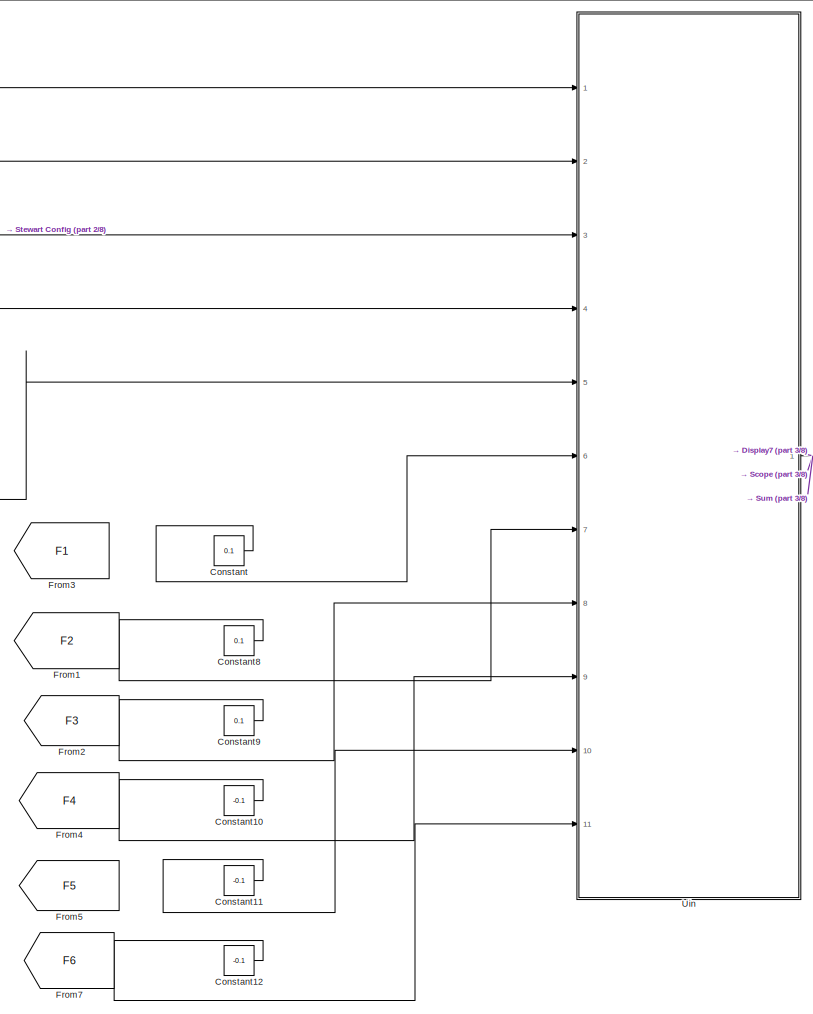
[diagram: root canvas - part 1/8, top center region]
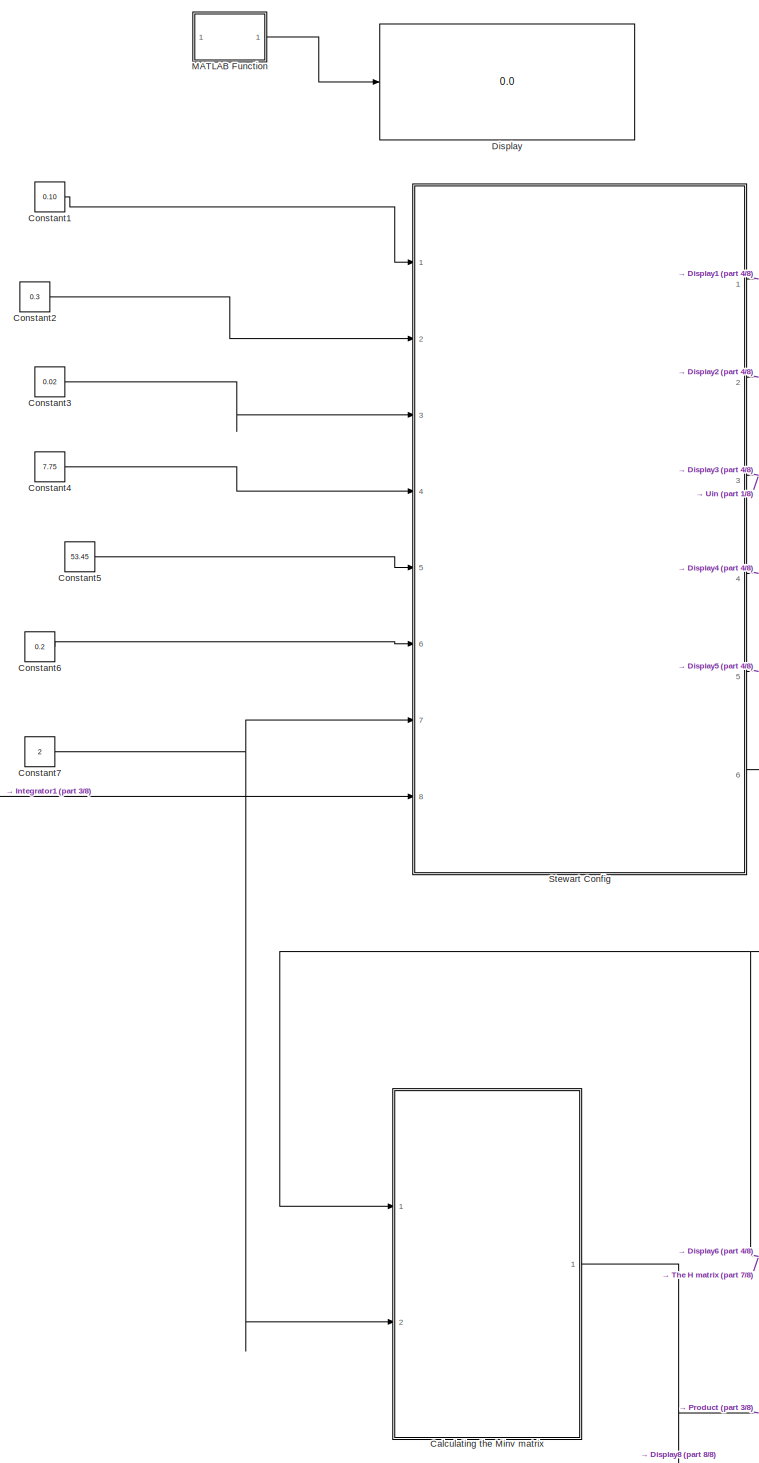
[diagram: root canvas - part 2/8, middle left region]
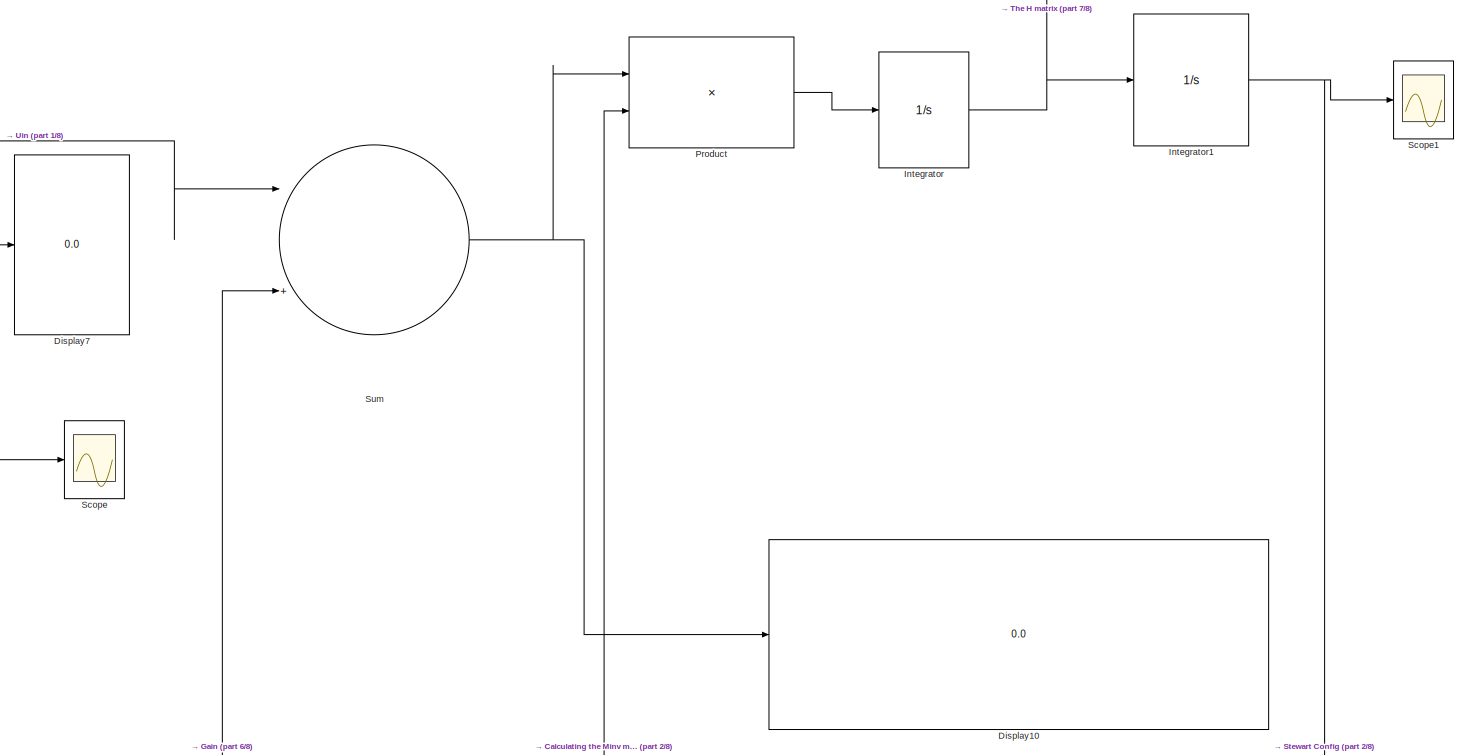
[diagram: root canvas - part 3/8, top right region]
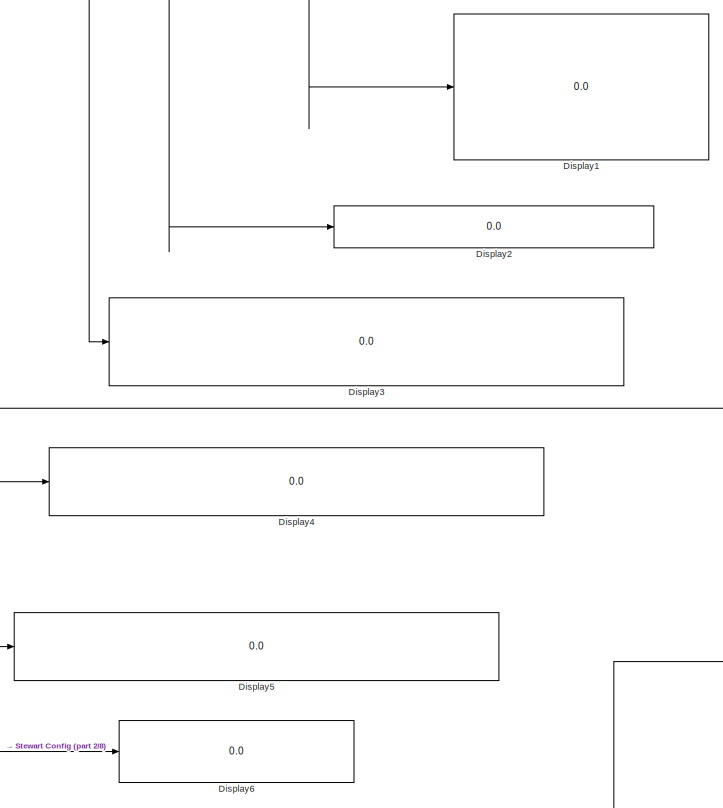
[diagram: root canvas - part 4/8, central region]
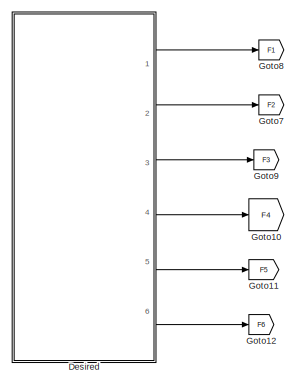
[diagram: root canvas - part 5/8, middle left region]
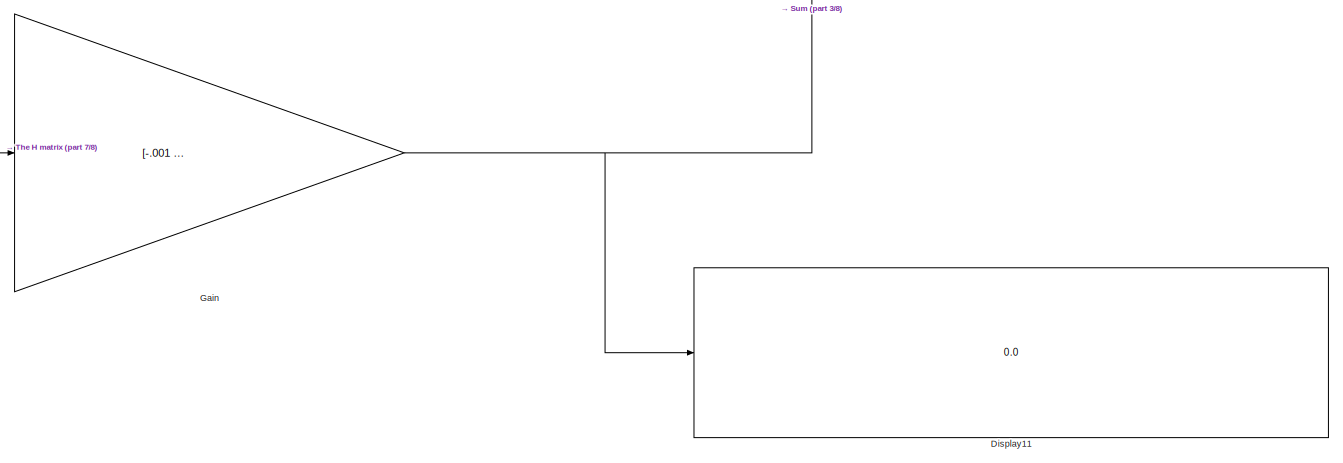
[diagram: root canvas - part 6/8, bottom right region]
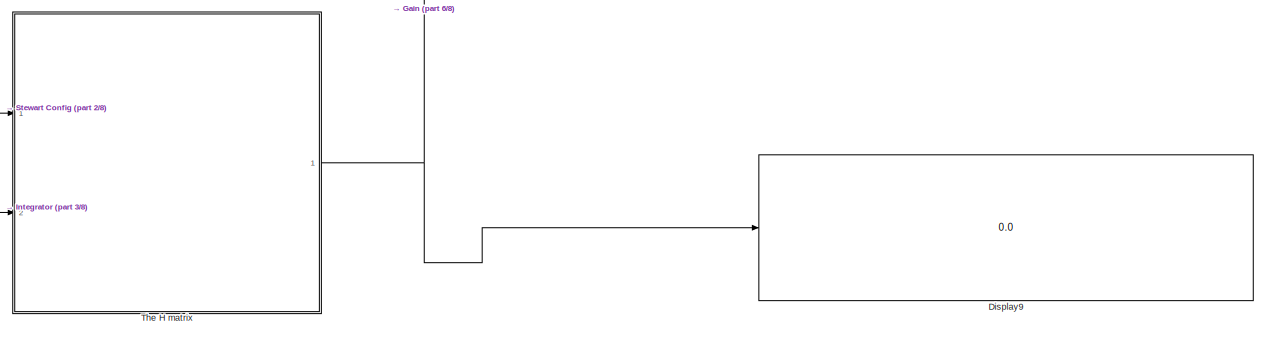
[diagram: root canvas - part 7/8, bottom center region]
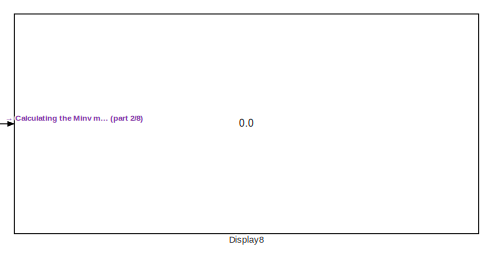
[diagram: root canvas - part 8/8, bottom left region]
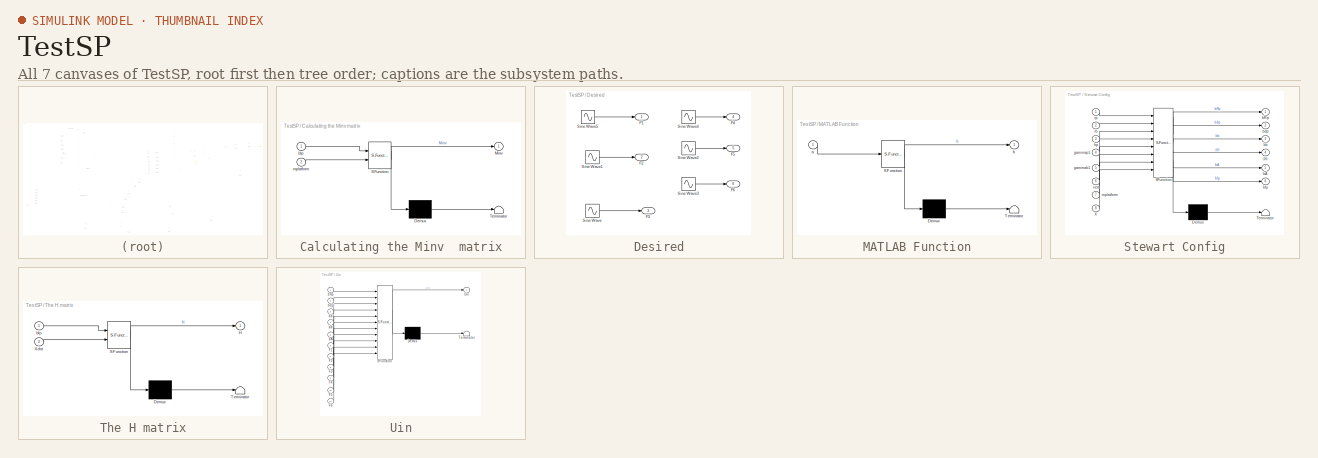
[diagram: thumbnail index - all 7 canvases of the model, root first then tree order]
MODEL TestSP
KIND model
BLOCK [SubSystem] Calculating the Minv  matrix
  ErrorFcn = Stateflow.Translate.translate
  PermitHierarchicalResolution = ExplicitOnly
  Ports = [2, 1]
  RequestExecContextInheritance = off
  SFBlockType = MATLAB Function
  SID = 50
  TreatAsAtomicUnit = on
BLOCK [Demux] Calculating the Minv  matrix/ Demux 
  Outputs = 1
  Ports = [1, 1]
  SID = 50::22
BLOCK [S-Function] Calculating the Minv  matrix/ SFunction 
  EnableBusSupport = on
  FunctionName = sf_sfun
  PortCounts = [2 2]
  Ports = [2, 2]
  SID = 50::21
  Tag = Stateflow S-Function TestSP 4
BLOCK [Terminator] Calculating the Minv  matrix/ Terminator 
  SID = 50::23
BLOCK [Outport] Calculating the Minv  matrix/Minv
  IconDisplay = Port number
  SID = 50::5
BLOCK [Inport] Calculating the Minv  matrix/bIp
  IconDisplay = Port number
  SID = 50::19
BLOCK [Inport] Calculating the Minv  matrix/mplatform
  IconDisplay = Port number
  Port = 2
  SID = 50::1
BLOCK [Constant] Constant
  SID = 2
  Value = 0.1
BLOCK [Constant] Constant1
  SID = 35
  Value = 0.10
BLOCK [Constant] Constant10
  SID = 45
  Value = -0.1
BLOCK [Constant] Constant11
  SID = 46
  Value = -0.1
BLOCK [Constant] Constant12
  SID = 47
  Value = -0.1
BLOCK [Constant] Constant2
  SID = 36
  Value = 0.3
BLOCK [Constant] Constant3
  SID = 37
  Value = 0.02
BLOCK [Constant] Constant4
  SID = 38
  Value = 7.75
BLOCK [Constant] Constant5
  SID = 39
  Value = 53.45
BLOCK [Constant] Constant6
  SID = 40
  Value = 0.2
BLOCK [Constant] Constant7
  SID = 41
  Value = 2
BLOCK [Constant] Constant8
  SID = 43
  Value = 0.1
BLOCK [Constant] Constant9
  SID = 44
  Value = 0.1
BLOCK [SubSystem] Desired
  Ports = [0, 6]
  RequestExecContextInheritance = off
  SID = 53
BLOCK [Outport] Desired/F1
  IconDisplay = Port number
  SID = 60
BLOCK [Outport] Desired/F2
  IconDisplay = Port number
  Port = 2
  SID = 61
BLOCK [Outport] Desired/F3
  IconDisplay = Port number
  Port = 3
  SID = 62
BLOCK [Outport] Desired/F4
  IconDisplay = Port number
  Port = 4
  SID = 63
BLOCK [Outport] Desired/F5
  IconDisplay = Port number
  Port = 5
  SID = 64
BLOCK [Outport] Desired/F6
  IconDisplay = Port number
  Port = 6
  SID = 65
BLOCK [Sin] Desired/Sine Wave
  Amplitude = 0.29
  Frequency = 0.6283
  Ports = [0, 1]
  SID = 54
  SampleTime = 0
BLOCK [Sin] Desired/Sine Wave1
  Amplitude = 0.3
  Frequency = 0.628
  Phase = 1.57
  Ports = [0, 1]
  SID = 55
  SampleTime = 0
BLOCK [Sin] Desired/Sine Wave2
  Amplitude = 0.305
  Frequency = 0.6283
  Ports = [0, 1]
  SID = 56
  SampleTime = 0
BLOCK [Sin] Desired/Sine Wave3
  Amplitude = 0.28
  Frequency = 0.6283
  Phase = 1.57
  Ports = [0, 1]
  SID = 57
  SampleTime = 0
BLOCK [Sin] Desired/Sine Wave4
  Amplitude = 0.31
  Frequency = 0.6283
  Phase = 1.57
  Ports = [0, 1]
  SID = 58
  SampleTime = 0
BLOCK [Sin] Desired/Sine Wave5
  Amplitude = 0.3
  Frequency = 0.628
  Ports = [0, 1]
  SID = 59
  SampleTime = 0
BLOCK [Display] Display
  Decimation = 1
  Ports = [1]
  SID = 4
BLOCK [Display] Display1
  Decimation = 1
  Ports = [1]
  SID = 27
BLOCK [Display] Display10
  Decimation = 1
  Ports = [1]
  SID = 92
BLOCK [Display] Display11
  Decimation = 1
  Ports = [1]
  SID = 93
BLOCK [Display] Display2
  Decimation = 1
  Ports = [1]
  SID = 28
BLOCK [Display] Display3
  Decimation = 1
  Ports = [1]
  SID = 29
BLOCK [Display] Display4
  Decimation = 1
  Ports = [1]
  SID = 30
BLOCK [Display] Display5
  Decimation = 1
  Ports = [1]
  SID = 31
BLOCK [Display] Display6
  Decimation = 1
  Ports = [1]
  SID = 32
BLOCK [Display] Display7
  Decimation = 1
  Ports = [1]
  SID = 48
BLOCK [Display] Display8
  Decimation = 1
  Ports = [1]
  SID = 51
BLOCK [Display] Display9
  Decimation = 1
  Ports = [1]
  SID = 86
BLOCK [From] From1
  CloseFcn = tagdialog Close
  GotoTag = F2
  SID = 78
BLOCK [From] From2
  CloseFcn = tagdialog Close
  GotoTag = F3
  SID = 79
BLOCK [From] From3
  CloseFcn = tagdialog Close
  GotoTag = F1
  SID = 80
BLOCK [From] From4
  CloseFcn = tagdialog Close
  GotoTag = F4
  SID = 81
BLOCK [From] From5
  CloseFcn = tagdialog Close
  GotoTag = F5
  SID = 82
BLOCK [From] From7
  CloseFcn = tagdialog Close
  GotoTag = F6
  SID = 83
BLOCK [Gain] Gain
  Gain = [-.001 0 0 -0.1 -0.05 -0.15]'
  Multiplication = Matrix(u*K)
  OutDataTypeStr = Inherit: Inherit via internal rule
  ParamDataTypeStr = Inherit: Inherit via internal rule
  SID = 87
  SaturateOnIntegerOverflow = off
BLOCK [Goto] Goto10
  GotoTag = F4
  SID = 66
BLOCK [Goto] Goto11
  GotoTag = F5
  SID = 67
BLOCK [Goto] Goto12
  GotoTag = F6
  SID = 68
BLOCK [Goto] Goto7
  GotoTag = F2
  SID = 69
BLOCK [Goto] Goto8
  GotoTag = F1
  SID = 70
BLOCK [Goto] Goto9
  GotoTag = F3
  SID = 71
BLOCK [Integrator] Integrator
  Ports = [1, 1]
  SID = 89
BLOCK [Integrator] Integrator1
  Ports = [1, 1]
  SID = 90
BLOCK [SubSystem] MATLAB Function
  ErrorFcn = Stateflow.Translate.translate
  PermitHierarchicalResolution = ExplicitOnly
  Ports = [1, 1]
  RequestExecContextInheritance = off
  SFBlockType = MATLAB Function
  SID = 1
  TreatAsAtomicUnit = on
BLOCK [Demux] MATLAB Function/ Demux 
  Outputs = 1
  Ports = [1, 1]
  SID = 1::22
BLOCK [S-Function] MATLAB Function/ SFunction 
  EnableBusSupport = on
  FunctionName = sf_sfun
  PortCounts = [1 2]
  Ports = [1, 2]
  SID = 1::21
  Tag = Stateflow S-Function TestSP 2
BLOCK [Terminator] MATLAB Function/ Terminator 
  SID = 1::23
BLOCK [Inport] MATLAB Function/a
  IconDisplay = Port number
  SID = 1::1
BLOCK [Outport] MATLAB Function/b
  IconDisplay = Port number
  SID = 1::5
BLOCK [Product] Product
  InputSameDT = off
  Multiplication = Matrix(*)
  OutDataTypeStr = Inherit: Inherit via internal rule
  Ports = [2, 1]
  RndMeth = Floor
  SID = 88
  SaturateOnIntegerOverflow = off
BLOCK [Scope] Scope
  Floating = off
  NumInputPorts = 1
  Ports = [1]
  SID = 84
BLOCK [Scope] Scope1
  Floating = off
  NumInputPorts = 1
  Ports = [1]
  SID = 91
  SaveName = ScopeData1
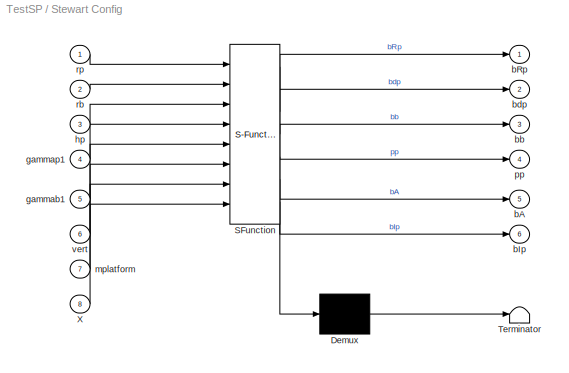
BLOCK [SubSystem] Stewart Config
  ErrorFcn = Stateflow.Translate.translate
  PermitHierarchicalResolution = ExplicitOnly
  Ports = [8, 6]
  RequestExecContextInheritance = off
  SFBlockType = MATLAB Function
  SID = 5
  TreatAsAtomicUnit = on
BLOCK [Demux] Stewart Config/ Demux 
  Outputs = 1
  Ports = [1, 1]
  SID = 5::36
BLOCK [S-Function] Stewart Config/ SFunction 
  EnableBusSupport = on
  FunctionName = sf_sfun
  PortCounts = [8 7]
  Ports = [8, 7]
  SID = 5::35
  Tag = Stateflow S-Function TestSP 1
BLOCK [Terminator] Stewart Config/ Terminator 
  SID = 5::37
BLOCK [Inport] Stewart Config/X
  IconDisplay = Port number
  Port = 8
  SID = 5::34
BLOCK [Outport] Stewart Config/bA
  IconDisplay = Port number
  Port = 5
  SID = 5::28
BLOCK [Outport] Stewart Config/bIp
  IconDisplay = Port number
  Port = 6
  SID = 5::30
BLOCK [Outport] Stewart Config/bRp
  IconDisplay = Port number
  SID = 5::5
BLOCK [Outport] Stewart Config/bb
  IconDisplay = Port number
  Port = 3
  SID = 5::26
BLOCK [Outport] Stewart Config/bdp
  IconDisplay = Port number
  Port = 2
  SID = 5::25
BLOCK [Inport] Stewart Config/gammab1
  IconDisplay = Port number
  Port = 5
  SID = 5::22
BLOCK [Inport] Stewart Config/gammap1
  IconDisplay = Port number
  Port = 4
  SID = 5::21
BLOCK [Inport] Stewart Config/hp
  IconDisplay = Port number
  Port = 3
  SID = 5::20
BLOCK [Inport] Stewart Config/mplatform
  IconDisplay = Port number
  Port = 7
  SID = 5::29
BLOCK [Outport] Stewart Config/pp
  IconDisplay = Port number
  Port = 4
  SID = 5::27
BLOCK [Inport] Stewart Config/rb
  IconDisplay = Port number
  Port = 2
  SID = 5::19
BLOCK [Inport] Stewart Config/rp
  IconDisplay = Port number
  SID = 5::1
BLOCK [Inport] Stewart Config/vert
  IconDisplay = Port number
  Port = 6
  SID = 5::23
BLOCK [Sum] Sum
  InputSameDT = off
  Inputs = |++
  OutDataTypeStr = Inherit: Inherit via internal rule
  Ports = [2, 1]
  SID = 49
  SaturateOnIntegerOverflow = off
BLOCK [SubSystem] The H matrix
  ErrorFcn = Stateflow.Translate.translate
  PermitHierarchicalResolution = ExplicitOnly
  Ports = [2, 1]
  RequestExecContextInheritance = off
  SFBlockType = MATLAB Function
  SID = 85
  TreatAsAtomicUnit = on
BLOCK [Demux] The H matrix/ Demux 
  Outputs = 1
  Ports = [1, 1]
  SID = 85::23
BLOCK [S-Function] The H matrix/ SFunction 
  EnableBusSupport = on
  FunctionName = sf_sfun
  PortCounts = [2 2]
  Ports = [2, 2]
  SID = 85::22
  Tag = Stateflow S-Function TestSP 5
BLOCK [Terminator] The H matrix/ Terminator 
  SID = 85::24
BLOCK [Outport] The H matrix/H
  IconDisplay = Port number
  SID = 85::5
BLOCK [Inport] The H matrix/Xdot
  IconDisplay = Port number
  Port = 2
  SID = 85::21
BLOCK [Inport] The H matrix/bIp
  IconDisplay = Port number
  SID = 85::1
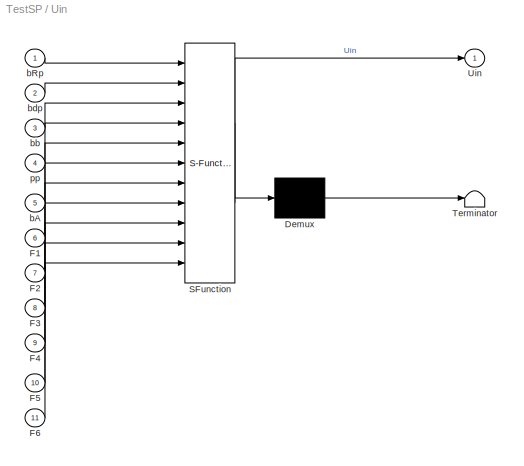
BLOCK [SubSystem] Uin
  ErrorFcn = Stateflow.Translate.translate
  PermitHierarchicalResolution = ExplicitOnly
  Ports = [11, 1]
  RequestExecContextInheritance = off
  SFBlockType = MATLAB Function
  SID = 42
  TreatAsAtomicUnit = on
BLOCK [Demux] Uin/ Demux 
  Outputs = 1
  Ports = [1, 1]
  SID = 42::30
BLOCK [S-Function] Uin/ SFunction 
  EnableBusSupport = on
  FunctionName = sf_sfun
  PortCounts = [11 2]
  Ports = [11, 2]
  SID = 42::29
  Tag = Stateflow S-Function TestSP 3
BLOCK [Terminator] Uin/ Terminator 
  SID = 42::31
BLOCK [Inport] Uin/F1
  IconDisplay = Port number
  Port = 6
  SID = 42::23
BLOCK [Inport] Uin/F2
  IconDisplay = Port number
  Port = 7
  SID = 42::24
BLOCK [Inport] Uin/F3
  IconDisplay = Port number
  Port = 8
  SID = 42::25
BLOCK [Inport] Uin/F4
  IconDisplay = Port number
  Port = 9
  SID = 42::26
BLOCK [Inport] Uin/F5
  IconDisplay = Port number
  Port = 10
  SID = 42::27
BLOCK [Inport] Uin/F6
  IconDisplay = Port number
  Port = 11
  SID = 42::28
BLOCK [Outport] Uin/Uin
  IconDisplay = Port number
  SID = 42::5
BLOCK [Inport] Uin/bA
  IconDisplay = Port number
  Port = 5
  SID = 42::22
BLOCK [Inport] Uin/bRp
  IconDisplay = Port number
  SID = 42::1
BLOCK [Inport] Uin/bb
  IconDisplay = Port number
  Port = 3
  SID = 42::20
BLOCK [Inport] Uin/bdp
  IconDisplay = Port number
  Port = 2
  SID = 42::21
BLOCK [Inport] Uin/pp
  IconDisplay = Port number
  Port = 4
  SID = 42::19
LINE Calculating the Minv  matrix/ Demux :1 -> Calculating the Minv  matrix/ Terminator :1
LINE Calculating the Minv  matrix/ SFunction :1 -> Calculating the Minv  matrix/ Demux :1
LINE Calculating the Minv  matrix/ SFunction :2 -> Calculating the Minv  matrix/Minv:1
LINE Calculating the Minv  matrix/bIp:1 -> Calculating the Minv  matrix/ SFunction :1
LINE Calculating the Minv  matrix/mplatform:1 -> Calculating the Minv  matrix/ SFunction :2
NET Calculating the Minv  matrix:1 -> Display8:1, Product:2
LINE Constant10:1 -> Uin:9
LINE Constant11:1 -> Uin:10
LINE Constant12:1 -> Uin:11
LINE Constant1:1 -> Stewart Config:1
LINE Constant2:1 -> Stewart Config:2
LINE Constant3:1 -> Stewart Config:3
LINE Constant4:1 -> Stewart Config:4
LINE Constant5:1 -> Stewart Config:5
LINE Constant6:1 -> Stewart Config:6
NET Constant7:1 -> Calculating the Minv  matrix:2, Stewart Config:7
LINE Constant8:1 -> Uin:7
LINE Constant9:1 -> Uin:8
LINE Constant:1 -> Uin:6
LINE Desired/Sine Wave1:1 -> Desired/F2:1
LINE Desired/Sine Wave2:1 -> Desired/F5:1
LINE Desired/Sine Wave3:1 -> Desired/F6:1
LINE Desired/Sine Wave4:1 -> Desired/F4:1
LINE Desired/Sine Wave5:1 -> Desired/F1:1
LINE Desired/Sine Wave:1 -> Desired/F3:1
LINE Desired:1 -> Goto8:1
LINE Desired:2 -> Goto7:1
LINE Desired:3 -> Goto9:1
LINE Desired:4 -> Goto10:1
LINE Desired:5 -> Goto11:1
LINE Desired:6 -> Goto12:1
NET Gain:1 -> Display11:1, Sum:2
NET Integrator1:1 -> Scope1:1, Stewart Config:8
NET Integrator:1 -> Integrator1:1, The H matrix:2
LINE MATLAB Function/ Demux :1 -> MATLAB Function/ Terminator :1
LINE MATLAB Function/ SFunction :1 -> MATLAB Function/ Demux :1
LINE MATLAB Function/ SFunction :2 -> MATLAB Function/b:1
LINE MATLAB Function/a:1 -> MATLAB Function/ SFunction :1
LINE MATLAB Function:1 -> Display:1
LINE Product:1 -> Integrator:1
LINE Stewart Config/ Demux :1 -> Stewart Config/ Terminator :1
LINE Stewart Config/ SFunction :1 -> Stewart Config/ Demux :1
LINE Stewart Config/ SFunction :2 -> Stewart Config/bRp:1
LINE Stewart Config/ SFunction :3 -> Stewart Config/bdp:1
LINE Stewart Config/ SFunction :4 -> Stewart Config/bb:1
LINE Stewart Config/ SFunction :5 -> Stewart Config/pp:1
LINE Stewart Config/ SFunction :6 -> Stewart Config/bA:1
LINE Stewart Config/ SFunction :7 -> Stewart Config/bIp:1
LINE Stewart Config/X:1 -> Stewart Config/ SFunction :8
LINE Stewart Config/gammab1:1 -> Stewart Config/ SFunction :5
LINE Stewart Config/gammap1:1 -> Stewart Config/ SFunction :4
LINE Stewart Config/hp:1 -> Stewart Config/ SFunction :3
LINE Stewart Config/mplatform:1 -> Stewart Config/ SFunction :7
LINE Stewart Config/rb:1 -> Stewart Config/ SFunction :2
LINE Stewart Config/rp:1 -> Stewart Config/ SFunction :1
LINE Stewart Config/vert:1 -> Stewart Config/ SFunction :6
NET Stewart Config:1 -> Display1:1, Uin:1
NET Stewart Config:2 -> Display2:1, Uin:2
NET Stewart Config:3 -> Display3:1, Uin:3
NET Stewart Config:4 -> Display4:1, Uin:4
NET Stewart Config:5 -> Display5:1, Uin:5
NET Stewart Config:6 -> Calculating the Minv  matrix:1, Display6:1, The H matrix:1
NET Sum:1 -> Display10:1, Product:1
LINE The H matrix/ Demux :1 -> The H matrix/ Terminator :1
LINE The H matrix/ SFunction :1 -> The H matrix/ Demux :1
LINE The H matrix/ SFunction :2 -> The H matrix/H:1
LINE The H matrix/Xdot:1 -> The H matrix/ SFunction :2
LINE The H matrix/bIp:1 -> The H matrix/ SFunction :1
NET The H matrix:1 -> Display9:1, Gain:1
LINE Uin/ Demux :1 -> Uin/ Terminator :1
LINE Uin/ SFunction :1 -> Uin/ Demux :1
LINE Uin/ SFunction :2 -> Uin/Uin:1
LINE Uin/F1:1 -> Uin/ SFunction :6
LINE Uin/F2:1 -> Uin/ SFunction :7
LINE Uin/F3:1 -> Uin/ SFunction :8
LINE Uin/F4:1 -> Uin/ SFunction :9
LINE Uin/F5:1 -> Uin/ SFunction :10
LINE Uin/F6:1 -> Uin/ SFunction :11
LINE Uin/bA:1 -> Uin/ SFunction :5
LINE Uin/bRp:1 -> Uin/ SFunction :1
LINE Uin/bb:1 -> Uin/ SFunction :3
LINE Uin/bdp:1 -> Uin/ SFunction :2
LINE Uin/pp:1 -> Uin/ SFunction :4
NET Uin:1 -> Display7:1, Scope:1, Sum:1
note: NET lines group one-source signal fan-out (src -> all destinations, sorted); 1:1 wires keep LINE
CHART Stewart Config states=1 transitions=1
  STATE_LABEL 'eML_blk_kernel()'
CHART MATLAB Function states=1 transitions=1
  STATE_LABEL 'eML_blk_kernel()'
CHART Uin states=1 transitions=1
  STATE_LABEL 'eML_blk_kernel()'
CHART Calculating the Minv  matrix states=1 transitions=1
  STATE_LABEL 'eML_blk_kernel()'
CHART The H matrix states=1 transitions=1
  STATE_LABEL 'eML_blk_kernel()'
